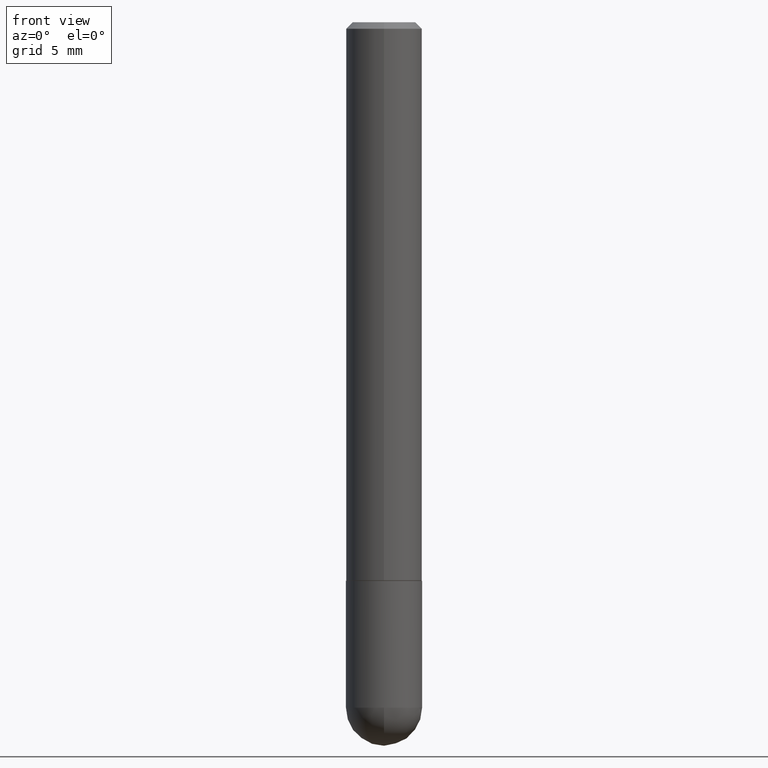
[diagram: clean part render]
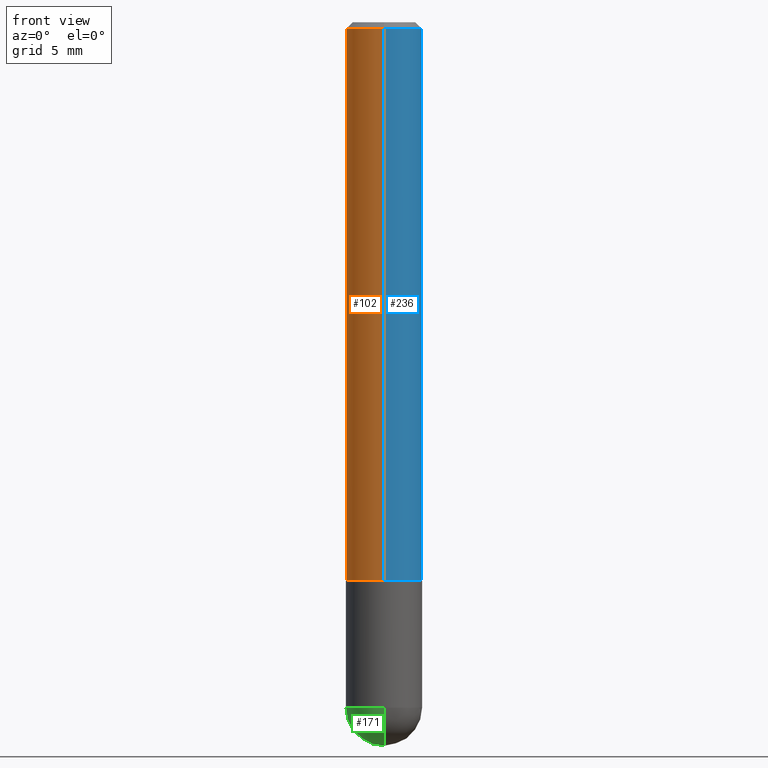
[diagram: same view with three faces highlighted in distinct colors, each labeled with its STEP entity id]
A machine part, front view with three faces highlighted in distinct colors.
Their STEP definitions:

[orange] entity #102 — the highlighted cylindrical surface (partial cylindrical patch) has radius 2.9997 mm, axis along (-0, 0, 1).
#28 = LINE ( 'NONE', #285, #211 ) ;
#48 = EDGE_CURVE ( 'NONE', #124, #344, #247, .T. ) ;
#55 = VERTEX_POINT ( 'NONE', #294 ) ;
#64 = CIRCLE ( 'NONE', #384, 0.1180999999999999966 ) ;
#66 = FACE_OUTER_BOUND ( 'NONE', #250, .T. ) ;
#70 = CYLINDRICAL_SURFACE ( 'NONE', #227, 0.1181000000000001077 ) ;
#76 = CARTESIAN_POINT ( 'NONE',  ( 8.246878922347484598E-16, 0.1180999999999999273, -0.02000000000000044104 ) ) ;
#83 = DIRECTION ( 'NONE',  ( -6.982962677686265922E-15, -1.000000000000000000, 4.626330217890361448E-15 ) ) ;
#101 = CARTESIAN_POINT ( 'NONE',  ( 8.391509709327007782E-16, 0.1180999999999941541, -1.731300000000000727 ) ) ;
#102 = ADVANCED_FACE ( 'NONE', ( #66 ), #70, .T. ) ;
#124 = VERTEX_POINT ( 'NONE', #101 ) ;
#135 = DIRECTION ( 'NONE',  ( -6.982962677686265922E-15, -1.000000000000000000, 3.505890868245046092E-15 ) ) ;
#143 = CARTESIAN_POINT ( 'NONE',  ( 4.890541096596784995E-31, -6.983530510842218825E-17, -0.02000000000000002470 ) ) ;
#153 = VERTEX_POINT ( 'NONE', #76 ) ;
#156 = ORIENTED_EDGE ( 'NONE', *, *, #195, .F. ) ;
#195 = EDGE_CURVE ( 'NONE', #124, #153, #349, .T. ) ;
#204 = AXIS2_PLACEMENT_3D ( 'NONE', #400, #368, #83 ) ;
#211 = VECTOR ( 'NONE', #257, 39.37007874015748143 ) ;
#213 = ORIENTED_EDGE ( 'NONE', *, *, #315, .F. ) ;
#217 = ORIENTED_EDGE ( 'NONE', *, *, #381, .T. ) ;
#227 = AXIS2_PLACEMENT_3D ( 'NONE', #409, #235, #231 ) ;
#231 = DIRECTION ( 'NONE',  ( -6.982962677686265133E-15, -1.000000000000000000, 3.491765255421105000E-15 ) ) ;
#235 = DIRECTION ( 'NONE',  ( -2.445270548298389607E-29, 3.491765255421105394E-15, 1.000000000000000000 ) ) ;
#247 = CIRCLE ( 'NONE', #204, 0.1181000000000002048 ) ;
#250 = EDGE_LOOP ( 'NONE', ( #156, #276, #217, #213 ) ) ;
#257 = DIRECTION ( 'NONE',  ( -2.445270548298389607E-29, 3.491765255421105394E-15, 1.000000000000000000 ) ) ;
#261 = DIRECTION ( 'NONE',  ( -2.445270548298389607E-29, 3.491765255421105394E-15, 1.000000000000000000 ) ) ;
#276 = ORIENTED_EDGE ( 'NONE', *, *, #48, .T. ) ;
#285 = CARTESIAN_POINT ( 'NONE',  ( -8.246878922347486570E-16, -0.1181000000000001077, 4.123774766652328807E-16 ) ) ;
#286 = CARTESIAN_POINT ( 'NONE',  ( 8.391509709326788873E-16, 0.1181000000000001077, -4.123774766652328807E-16 ) ) ;
#294 = CARTESIAN_POINT ( 'NONE',  ( -8.102248135368172434E-16, -0.1181000000000000660, -0.01999999999999961184 ) ) ;
#315 = EDGE_CURVE ( 'NONE', #153, #55, #64, .T. ) ;
#344 = VERTEX_POINT ( 'NONE', #361 ) ;
#349 = LINE ( 'NONE', #286, #369 ) ;
#361 = CARTESIAN_POINT ( 'NONE',  ( -8.246878922347070446E-16, -0.1181000000000062417, -1.731299999999999617 ) ) ;
#368 = DIRECTION ( 'NONE',  ( -2.445270548298389607E-29, 3.491765255421105394E-15, 1.000000000000000000 ) ) ;
#369 = VECTOR ( 'NONE', #261, 39.37007874015748143 ) ;
#381 = EDGE_CURVE ( 'NONE', #344, #55, #28, .T. ) ;
#384 = AXIS2_PLACEMENT_3D ( 'NONE', #143, #412, #135 ) ;
#400 = CARTESIAN_POINT ( 'NONE',  ( 4.233496900269002664E-29, -6.045293186710559956E-15, -1.731300000000000283 ) ) ;
#409 = CARTESIAN_POINT ( 'NONE',  ( 0.000000000000000000, 0.000000000000000000, 0.000000000000000000 ) ) ;
#412 = DIRECTION ( 'NONE',  ( -2.445270548298389607E-29, 3.491765255421105394E-15, 1.000000000000000000 ) ) ;

[blue] entity #236 — the highlighted cylindrical surface (partial cylindrical patch) has radius 2.9997 mm, axis along (-0, 0, 1).
#20 = CIRCLE ( 'NONE', #140, 0.1180999999999999966 ) ;
#28 = LINE ( 'NONE', #285, #211 ) ;
#34 = ORIENTED_EDGE ( 'NONE', *, *, #374, .T. ) ;
#55 = VERTEX_POINT ( 'NONE', #294 ) ;
#57 = DIRECTION ( 'NONE',  ( -6.982962677686265922E-15, -1.000000000000000000, 4.626330217890361448E-15 ) ) ;
#76 = CARTESIAN_POINT ( 'NONE',  ( 8.246878922347484598E-16, 0.1180999999999999273, -0.02000000000000044104 ) ) ;
#82 = EDGE_LOOP ( 'NONE', ( #34, #251, #157, #245 ) ) ;
#95 = CARTESIAN_POINT ( 'NONE',  ( 0.000000000000000000, 0.000000000000000000, 0.000000000000000000 ) ) ;
#97 = CYLINDRICAL_SURFACE ( 'NONE', #284, 0.1181000000000001077 ) ;
#101 = CARTESIAN_POINT ( 'NONE',  ( 8.391509709327007782E-16, 0.1180999999999941541, -1.731300000000000727 ) ) ;
#124 = VERTEX_POINT ( 'NONE', #101 ) ;
#127 = CARTESIAN_POINT ( 'NONE',  ( 4.233496900269002664E-29, -6.045293186710559956E-15, -1.731300000000000283 ) ) ;
#140 = AXIS2_PLACEMENT_3D ( 'NONE', #378, #166, #317 ) ;
#153 = VERTEX_POINT ( 'NONE', #76 ) ;
#157 = ORIENTED_EDGE ( 'NONE', *, *, #270, .F. ) ;
#162 = CIRCLE ( 'NONE', #393, 0.1181000000000002048 ) ;
#166 = DIRECTION ( 'NONE',  ( -2.445270548298389607E-29, 3.491765255421105394E-15, 1.000000000000000000 ) ) ;
#195 = EDGE_CURVE ( 'NONE', #124, #153, #349, .T. ) ;
#211 = VECTOR ( 'NONE', #257, 39.37007874015748143 ) ;
#236 = ADVANCED_FACE ( 'NONE', ( #388 ), #97, .T. ) ;
#245 = ORIENTED_EDGE ( 'NONE', *, *, #381, .F. ) ;
#251 = ORIENTED_EDGE ( 'NONE', *, *, #195, .T. ) ;
#257 = DIRECTION ( 'NONE',  ( -2.445270548298389607E-29, 3.491765255421105394E-15, 1.000000000000000000 ) ) ;
#258 = DIRECTION ( 'NONE',  ( -6.982962677686265133E-15, -1.000000000000000000, 3.491765255421105000E-15 ) ) ;
#261 = DIRECTION ( 'NONE',  ( -2.445270548298389607E-29, 3.491765255421105394E-15, 1.000000000000000000 ) ) ;
#270 = EDGE_CURVE ( 'NONE', #55, #153, #20, .T. ) ;
#284 = AXIS2_PLACEMENT_3D ( 'NONE', #95, #383, #258 ) ;
#285 = CARTESIAN_POINT ( 'NONE',  ( -8.246878922347486570E-16, -0.1181000000000001077, 4.123774766652328807E-16 ) ) ;
#286 = CARTESIAN_POINT ( 'NONE',  ( 8.391509709326788873E-16, 0.1181000000000001077, -4.123774766652328807E-16 ) ) ;
#290 = DIRECTION ( 'NONE',  ( -2.445270548298389607E-29, 3.491765255421105394E-15, 1.000000000000000000 ) ) ;
#294 = CARTESIAN_POINT ( 'NONE',  ( -8.102248135368172434E-16, -0.1181000000000000660, -0.01999999999999961184 ) ) ;
#317 = DIRECTION ( 'NONE',  ( -6.982962677686265922E-15, -1.000000000000000000, 3.505890868245046092E-15 ) ) ;
#344 = VERTEX_POINT ( 'NONE', #361 ) ;
#349 = LINE ( 'NONE', #286, #369 ) ;
#361 = CARTESIAN_POINT ( 'NONE',  ( -8.246878922347070446E-16, -0.1181000000000062417, -1.731299999999999617 ) ) ;
#369 = VECTOR ( 'NONE', #261, 39.37007874015748143 ) ;
#374 = EDGE_CURVE ( 'NONE', #344, #124, #162, .T. ) ;
#378 = CARTESIAN_POINT ( 'NONE',  ( 4.890541096596784995E-31, -6.983530510842218825E-17, -0.02000000000000002470 ) ) ;
#381 = EDGE_CURVE ( 'NONE', #344, #55, #28, .T. ) ;
#383 = DIRECTION ( 'NONE',  ( -2.445270548298389607E-29, 3.491765255421105394E-15, 1.000000000000000000 ) ) ;
#388 = FACE_OUTER_BOUND ( 'NONE', #82, .T. ) ;
#393 = AXIS2_PLACEMENT_3D ( 'NONE', #127, #290, #57 ) ;

[green] entity #171 — the highlighted spherical surface has radius 2.9997 mm.
#1 = VERTEX_POINT ( 'NONE', #303 ) ;
#14 = DIRECTION ( 'NONE',  ( -1.000000000000000000, 6.982962677686265922E-15, -4.883557194083112901E-29 ) ) ;
#15 = CIRCLE ( 'NONE', #130, 0.1180999999999999966 ) ;
#19 = ORIENTED_EDGE ( 'NONE', *, *, #22, .T. ) ;
#22 = EDGE_CURVE ( 'NONE', #385, #282, #376, .T. ) ;
#29 = AXIS2_PLACEMENT_3D ( 'NONE', #302, #14, #274 ) ;
#61 = CARTESIAN_POINT ( 'NONE',  ( 8.246878922347992427E-16, 0.1180999999999924471, -2.126000000000000334 ) ) ;
#74 = EDGE_CURVE ( 'NONE', #1, #282, #15, .T. ) ;
#77 = AXIS2_PLACEMENT_3D ( 'NONE', #246, #181, #273 ) ;
#80 = EDGE_CURVE ( 'NONE', #385, #232, #84, .T. ) ;
#84 = CIRCLE ( 'NONE', #253, 0.1181000000000002603 ) ;
#87 = ORIENTED_EDGE ( 'NONE', *, *, #208, .F. ) ;
#130 = AXIS2_PLACEMENT_3D ( 'NONE', #133, #358, #144 ) ;
#133 = CARTESIAN_POINT ( 'NONE',  ( 5.199066681949599750E-29, -7.422889326380526631E-15, -2.125999999999999890 ) ) ;
#144 = DIRECTION ( 'NONE',  ( 1.000000000000000000, -6.982962677686265133E-15, 0.000000000000000000 ) ) ;
#148 = FACE_OUTER_BOUND ( 'NONE', #338, .T. ) ;
#171 = ADVANCED_FACE ( 'NONE', ( #148 ), #175, .T. ) ;
#175 = SPHERICAL_SURFACE ( 'NONE', #29, 0.1181000000000002603 ) ;
#181 = DIRECTION ( 'NONE',  ( -1.000000000000000000, 7.105427357601001070E-15, -4.926315508542082329E-29 ) ) ;
#183 = ORIENTED_EDGE ( 'NONE', *, *, #74, .F. ) ;
#184 = ORIENTED_EDGE ( 'NONE', *, *, #80, .F. ) ;
#192 = DIRECTION ( 'NONE',  ( 6.982962677686265133E-15, 1.000000000000000000, 0.000000000000000000 ) ) ;
#208 = EDGE_CURVE ( 'NONE', #232, #1, #407, .T. ) ;
#225 = CARTESIAN_POINT ( 'NONE',  ( -8.391509709326287947E-16, -0.1181000000000077821, -2.125999999999999446 ) ) ;
#232 = VERTEX_POINT ( 'NONE', #61 ) ;
#246 = CARTESIAN_POINT ( 'NONE',  ( 4.867946904035714063E-29, -7.897071694520576927E-15, -2.125999999999999890 ) ) ;
#252 = DIRECTION ( 'NONE',  ( -2.445468806185136597E-29, 3.491481338843145583E-15, 1.000000000000000000 ) ) ;
#253 = AXIS2_PLACEMENT_3D ( 'NONE', #259, #382, #192 ) ;
#256 = CARTESIAN_POINT ( 'NONE',  ( 5.199066681949599750E-29, -7.422889326380526631E-15, -2.125999999999999890 ) ) ;
#259 = CARTESIAN_POINT ( 'NONE',  ( 4.867946904035714063E-29, -7.897071694520576927E-15, -2.125999999999999890 ) ) ;
#260 = CARTESIAN_POINT ( 'NONE',  ( 5.161806526983783890E-29, -8.302184101288988852E-15, -2.244100000000000428 ) ) ;
#273 = DIRECTION ( 'NONE',  ( -7.105427357601000281E-15, -1.000000000000000000, 0.000000000000000000 ) ) ;
#274 = DIRECTION ( 'NONE',  ( 6.982962677686265922E-15, 1.000000000000000000, -4.626330217890359870E-15 ) ) ;
#282 = VERTEX_POINT ( 'NONE', #225 ) ;
#302 = CARTESIAN_POINT ( 'NONE',  ( 4.867946904035714063E-29, -7.897071694520576927E-15, -2.125999999999999890 ) ) ;
#303 = CARTESIAN_POINT ( 'NONE',  ( -0.1180999999999999966, -5.896440253896576841E-15, -2.125999999999999890 ) ) ;
#311 = DIRECTION ( 'NONE',  ( 1.000000000000000000, -6.982962677686265133E-15, 0.000000000000000000 ) ) ;
#324 = AXIS2_PLACEMENT_3D ( 'NONE', #256, #252, #311 ) ;
#338 = EDGE_LOOP ( 'NONE', ( #184, #19, #183, #87 ) ) ;
#358 = DIRECTION ( 'NONE',  ( -2.445468806185136597E-29, 3.491481338843145583E-15, 1.000000000000000000 ) ) ;
#376 = CIRCLE ( 'NONE', #77, 0.1181000000000002603 ) ;
#382 = DIRECTION ( 'NONE',  ( 1.000000000000000000, -6.982962677686265922E-15, 4.883557194083112340E-29 ) ) ;
#385 = VERTEX_POINT ( 'NONE', #260 ) ;
#407 = CIRCLE ( 'NONE', #324, 0.1180999999999999966 ) ;